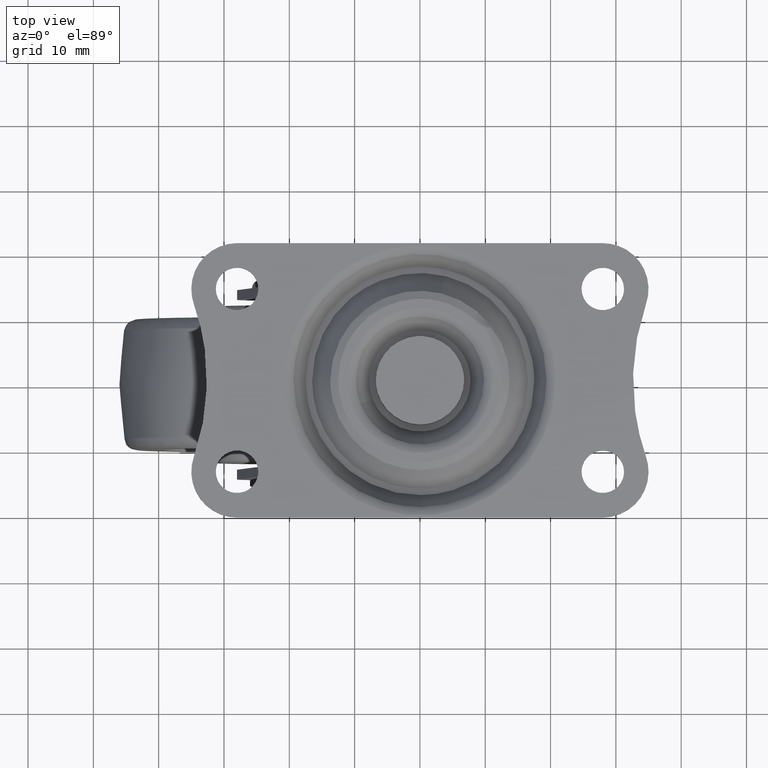
[diagram: clean part render]
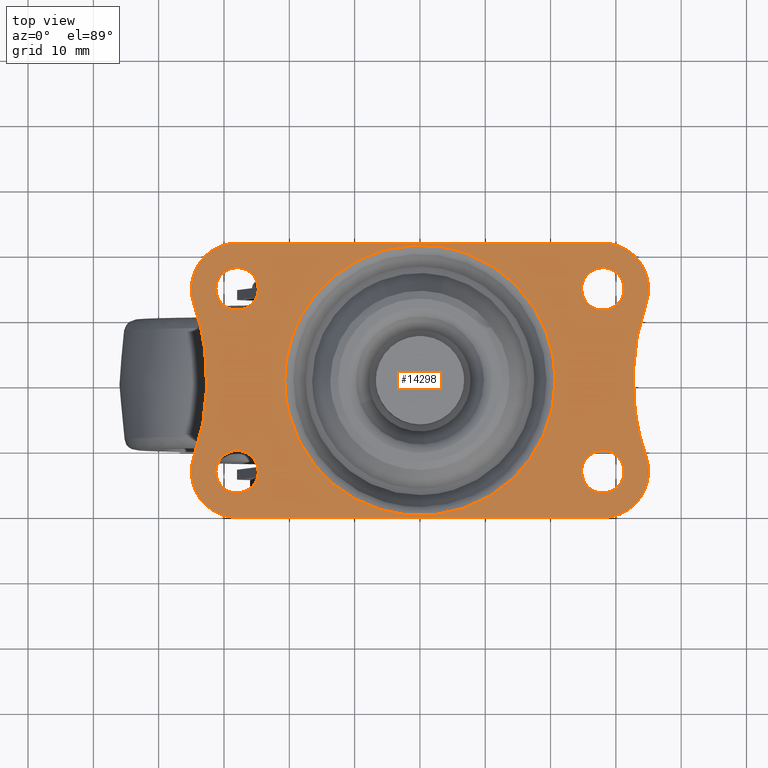
[diagram: same view with one face highlighted and labeled with its STEP entity id]
A machine part, top view. The second image highlights one B-rep face of the part: STEP entity #14298.
In plain terms, the highlighted face is a freeform B-spline surface patch.
Its self-contained STEP definition (entity closure, byte-faithful):
#7924=CARTESIAN_POINT('',(-28.383611239144710,10.772719237933909,1.499999999999946));
#7925=VERTEX_POINT('',#7924);
#7931=CARTESIAN_POINT('',(-24.750000199999999,14.0,1.499999999999946));
#7932=VERTEX_POINT('',#7931);
#7933=CARTESIAN_POINT('',(-28.383611239144710,10.772719237933902,1.499999999999946));
#7934=CARTESIAN_POINT('',(-28.192478377142205,10.750000199999997,1.499999999999946));
#7935=CARTESIAN_POINT('',(-28.0,10.750000200000001,1.499999999999946));
#7936=CARTESIAN_POINT('',(-24.750000200000002,10.750000200000001,1.499999999999946));
#7937=CARTESIAN_POINT('',(-24.750000199999999,14.0,1.499999999999946));
#7945=(BOUNDED_CURVE()B_SPLINE_CURVE(2,(#7933,#7934,#7935,#7936,#7937),.UNSPECIFIED.,.F.,.U.)B_SPLINE_CURVE_WITH_KNOTS((3,2,3),(0.229562473503381,0.250000000000000,0.500000000000000),.UNSPECIFIED.)CURVE()GEOMETRIC_REPRESENTATION_ITEM()RATIONAL_B_SPLINE_CURVE((0.956026754163850,0.976055948319280,1.0,0.707106781186548,1.0))REPRESENTATION_ITEM(''));
#7946=EDGE_CURVE('',#7925,#7932,#7945,.T.);
#7948=CARTESIAN_POINT('',(-27.801592258565499,17.243937895234570,1.499999999999946));
#7949=VERTEX_POINT('',#7948);
#7950=CARTESIAN_POINT('',(-24.750000199999999,14.0,1.499999999999946));
#7951=CARTESIAN_POINT('',(-24.750000199999999,17.057294529007827,1.499999999999947));
#7952=CARTESIAN_POINT('',(-27.801592258565499,17.243937895234570,1.499999999999946));
#7960=(BOUNDED_CURVE()B_SPLINE_CURVE(2,(#7950,#7951,#7952),.UNSPECIFIED.,.F.,.U.)B_SPLINE_CURVE_WITH_KNOTS((3,3),(0.500000000000000,0.739332962225380),.UNSPECIFIED.)CURVE()GEOMETRIC_REPRESENTATION_ITEM()RATIONAL_B_SPLINE_CURVE((1.0,0.719603993302600,0.976072041637651))REPRESENTATION_ITEM(''));
#7961=EDGE_CURVE('',#7932,#7949,#7960,.T.);
#8035=CARTESIAN_POINT('',(-31.249999800000001,14.0,1.499999999999946));
#8036=VERTEX_POINT('',#8035);
#8037=CARTESIAN_POINT('',(-27.801592258565499,17.243937895234566,1.499999999999946));
#8038=CARTESIAN_POINT('',(-27.900703525233780,17.249999800000005,1.499999999999946));
#8039=CARTESIAN_POINT('',(-28.0,17.249999800000001,1.499999999999946));
#8040=CARTESIAN_POINT('',(-31.249999800000008,17.249999800000001,1.499999999999946));
#8041=CARTESIAN_POINT('',(-31.249999800000001,14.0,1.499999999999946));
#8049=(BOUNDED_CURVE()B_SPLINE_CURVE(2,(#8037,#8038,#8039,#8040,#8041),.UNSPECIFIED.,.F.,.U.)B_SPLINE_CURVE_WITH_KNOTS((3,2,3),(0.739332962225381,0.750000000000000,1.0),.UNSPECIFIED.)CURVE()GEOMETRIC_REPRESENTATION_ITEM()RATIONAL_B_SPLINE_CURVE((0.976072041637652,0.987502787883949,1.0,0.707106781186548,1.0))REPRESENTATION_ITEM(''));
#8050=EDGE_CURVE('',#7949,#8036,#8049,.T.);
#8052=CARTESIAN_POINT('',(-31.249999800000001,14.0,1.499999999999946));
#8053=CARTESIAN_POINT('',(-31.249999800000005,11.113432968503888,1.499999999999946));
#8054=CARTESIAN_POINT('',(-28.383611239144710,10.772719237933902,1.499999999999946));
#8062=(BOUNDED_CURVE()B_SPLINE_CURVE(2,(#8052,#8053,#8054),.UNSPECIFIED.,.F.,.U.)B_SPLINE_CURVE_WITH_KNOTS((3,3),(0.0,0.229562473503381),.UNSPECIFIED.)CURVE()GEOMETRIC_REPRESENTATION_ITEM()RATIONAL_B_SPLINE_CURVE((1.0,0.731050832867267,0.956026754163850))REPRESENTATION_ITEM(''));
#8063=EDGE_CURVE('',#8036,#7925,#8062,.T.);
#8110=CARTESIAN_POINT('',(-28.383611239144710,-17.227288762066010,1.499999999999946));
#8111=VERTEX_POINT('',#8110);
#8117=CARTESIAN_POINT('',(-24.750000199999999,-14.000007999999919,1.499999999999946));
#8118=VERTEX_POINT('',#8117);
#8119=CARTESIAN_POINT('',(-28.383611239144702,-17.227288762066006,1.499999999999946));
#8120=CARTESIAN_POINT('',(-28.192478377142212,-17.250007799999921,1.499999999999947));
#8121=CARTESIAN_POINT('',(-28.0,-17.250007799999921,1.499999999999946));
#8122=CARTESIAN_POINT('',(-24.750000200000002,-17.250007799999917,1.499999999999946));
#8123=CARTESIAN_POINT('',(-24.750000199999999,-14.000007999999919,1.499999999999946));
#8131=(BOUNDED_CURVE()B_SPLINE_CURVE(2,(#8119,#8120,#8121,#8122,#8123),.UNSPECIFIED.,.F.,.U.)B_SPLINE_CURVE_WITH_KNOTS((3,2,3),(0.229562473503381,0.250000000000000,0.500000000000000),.UNSPECIFIED.)CURVE()GEOMETRIC_REPRESENTATION_ITEM()RATIONAL_B_SPLINE_CURVE((0.956026754163849,0.976055948319280,1.0,0.707106781186548,1.0))REPRESENTATION_ITEM(''));
#8132=EDGE_CURVE('',#8111,#8118,#8131,.T.);
#8134=CARTESIAN_POINT('',(-27.801592258565499,-10.756070104765350,1.499999999999946));
#8135=VERTEX_POINT('',#8134);
#8136=CARTESIAN_POINT('',(-24.750000199999999,-14.000007999999919,1.499999999999946));
#8137=CARTESIAN_POINT('',(-24.750000199999999,-10.942713470992089,1.499999999999947));
#8138=CARTESIAN_POINT('',(-27.801592258565499,-10.756070104765355,1.499999999999946));
#8146=(BOUNDED_CURVE()B_SPLINE_CURVE(2,(#8136,#8137,#8138),.UNSPECIFIED.,.F.,.U.)B_SPLINE_CURVE_WITH_KNOTS((3,3),(0.500000000000000,0.739332962225380),.UNSPECIFIED.)CURVE()GEOMETRIC_REPRESENTATION_ITEM()RATIONAL_B_SPLINE_CURVE((1.0,0.719603993302600,0.976072041637651))REPRESENTATION_ITEM(''));
#8147=EDGE_CURVE('',#8118,#8135,#8146,.T.);
#8221=CARTESIAN_POINT('',(-31.249999800000001,-14.000007999999919,1.499999999999946));
#8222=VERTEX_POINT('',#8221);
#8223=CARTESIAN_POINT('',(-27.801592258565499,-10.756070104765351,1.499999999999946));
#8224=CARTESIAN_POINT('',(-27.900703525233780,-10.750008199999922,1.499999999999946));
#8225=CARTESIAN_POINT('',(-28.0,-10.750008199999920,1.499999999999946));
#8226=CARTESIAN_POINT('',(-31.249999800000008,-10.750008199999922,1.499999999999946));
#8227=CARTESIAN_POINT('',(-31.249999800000001,-14.000007999999919,1.499999999999946));
#8235=(BOUNDED_CURVE()B_SPLINE_CURVE(2,(#8223,#8224,#8225,#8226,#8227),.UNSPECIFIED.,.F.,.U.)B_SPLINE_CURVE_WITH_KNOTS((3,2,3),(0.739332962225381,0.750000000000000,1.0),.UNSPECIFIED.)CURVE()GEOMETRIC_REPRESENTATION_ITEM()RATIONAL_B_SPLINE_CURVE((0.976072041637652,0.987502787883949,1.0,0.707106781186548,1.0))REPRESENTATION_ITEM(''));
#8236=EDGE_CURVE('',#8135,#8222,#8235,.T.);
#8238=CARTESIAN_POINT('',(-31.249999800000001,-14.000007999999919,1.499999999999946));
#8239=CARTESIAN_POINT('',(-31.249999800000005,-16.886575031496019,1.499999999999946));
#8240=CARTESIAN_POINT('',(-28.383611239144710,-17.227288762066010,1.499999999999946));
#8248=(BOUNDED_CURVE()B_SPLINE_CURVE(2,(#8238,#8239,#8240),.UNSPECIFIED.,.F.,.U.)B_SPLINE_CURVE_WITH_KNOTS((3,3),(0.0,0.229562473503381),.UNSPECIFIED.)CURVE()GEOMETRIC_REPRESENTATION_ITEM()RATIONAL_B_SPLINE_CURVE((1.0,0.731050832867268,0.956026754163849))REPRESENTATION_ITEM(''));
#8249=EDGE_CURVE('',#8222,#8111,#8248,.T.);
#8296=CARTESIAN_POINT('',(27.616388760855290,10.772719237933909,1.499999999999946));
#8297=VERTEX_POINT('',#8296);
#8303=CARTESIAN_POINT('',(31.249999800000001,14.0,1.499999999999946));
#8304=VERTEX_POINT('',#8303);
#8305=CARTESIAN_POINT('',(27.616388760855298,10.772719237933911,1.499999999999946));
#8306=CARTESIAN_POINT('',(27.807521622857788,10.750000200000001,1.499999999999946));
#8307=CARTESIAN_POINT('',(28.0,10.750000200000001,1.499999999999946));
#8308=CARTESIAN_POINT('',(31.249999800000008,10.750000200000001,1.499999999999946));
#8309=CARTESIAN_POINT('',(31.249999800000001,14.0,1.499999999999946));
#8317=(BOUNDED_CURVE()B_SPLINE_CURVE(2,(#8305,#8306,#8307,#8308,#8309),.UNSPECIFIED.,.F.,.U.)B_SPLINE_CURVE_WITH_KNOTS((3,2,3),(0.229562473503381,0.250000000000000,0.500000000000000),.UNSPECIFIED.)CURVE()GEOMETRIC_REPRESENTATION_ITEM()RATIONAL_B_SPLINE_CURVE((0.956026754163849,0.976055948319280,1.0,0.707106781186548,1.0))REPRESENTATION_ITEM(''));
#8318=EDGE_CURVE('',#8297,#8304,#8317,.T.);
#8320=CARTESIAN_POINT('',(28.198407741434501,17.243937895234570,1.499999999999946));
#8321=VERTEX_POINT('',#8320);
#8322=CARTESIAN_POINT('',(31.249999800000001,14.0,1.499999999999946));
#8323=CARTESIAN_POINT('',(31.249999799999998,17.057294529007827,1.499999999999947));
#8324=CARTESIAN_POINT('',(28.198407741434504,17.243937895234570,1.499999999999946));
#8332=(BOUNDED_CURVE()B_SPLINE_CURVE(2,(#8322,#8323,#8324),.UNSPECIFIED.,.F.,.U.)B_SPLINE_CURVE_WITH_KNOTS((3,3),(0.500000000000000,0.739332962225380),.UNSPECIFIED.)CURVE()GEOMETRIC_REPRESENTATION_ITEM()RATIONAL_B_SPLINE_CURVE((1.0,0.719603993302600,0.976072041637651))REPRESENTATION_ITEM(''));
#8333=EDGE_CURVE('',#8304,#8321,#8332,.T.);
#8407=CARTESIAN_POINT('',(24.750000199999999,14.0,1.499999999999946));
#8408=VERTEX_POINT('',#8407);
#8409=CARTESIAN_POINT('',(28.198407741434504,17.243937895234566,1.499999999999946));
#8410=CARTESIAN_POINT('',(28.099296474766231,17.249999800000005,1.499999999999946));
#8411=CARTESIAN_POINT('',(28.0,17.249999800000001,1.499999999999946));
#8412=CARTESIAN_POINT('',(24.750000200000002,17.249999800000001,1.499999999999946));
#8413=CARTESIAN_POINT('',(24.750000199999999,14.0,1.499999999999946));
#8421=(BOUNDED_CURVE()B_SPLINE_CURVE(2,(#8409,#8410,#8411,#8412,#8413),.UNSPECIFIED.,.F.,.U.)B_SPLINE_CURVE_WITH_KNOTS((3,2,3),(0.739332962225381,0.750000000000000,1.0),.UNSPECIFIED.)CURVE()GEOMETRIC_REPRESENTATION_ITEM()RATIONAL_B_SPLINE_CURVE((0.976072041637652,0.987502787883949,1.0,0.707106781186548,1.0))REPRESENTATION_ITEM(''));
#8422=EDGE_CURVE('',#8321,#8408,#8421,.T.);
#8424=CARTESIAN_POINT('',(24.750000199999999,14.0,1.499999999999946));
#8425=CARTESIAN_POINT('',(24.750000199999999,11.113432968503895,1.499999999999946));
#8426=CARTESIAN_POINT('',(27.616388760855298,10.772719237933911,1.499999999999946));
#8434=(BOUNDED_CURVE()B_SPLINE_CURVE(2,(#8424,#8425,#8426),.UNSPECIFIED.,.F.,.U.)B_SPLINE_CURVE_WITH_KNOTS((3,3),(0.0,0.229562473503381),.UNSPECIFIED.)CURVE()GEOMETRIC_REPRESENTATION_ITEM()RATIONAL_B_SPLINE_CURVE((1.0,0.731050832867268,0.956026754163849))REPRESENTATION_ITEM(''));
#8435=EDGE_CURVE('',#8408,#8297,#8434,.T.);
#8482=CARTESIAN_POINT('',(27.616388760855290,-17.227280762066091,1.499999999999946));
#8483=VERTEX_POINT('',#8482);
#8489=CARTESIAN_POINT('',(31.249999800000001,-14.0,1.499999999999946));
#8490=VERTEX_POINT('',#8489);
#8491=CARTESIAN_POINT('',(27.616388760855290,-17.227280762066098,1.499999999999946));
#8492=CARTESIAN_POINT('',(27.807521622857784,-17.249999800000001,1.499999999999946));
#8493=CARTESIAN_POINT('',(28.0,-17.249999800000001,1.499999999999946));
#8494=CARTESIAN_POINT('',(31.249999800000008,-17.249999800000001,1.499999999999946));
#8495=CARTESIAN_POINT('',(31.249999800000001,-14.0,1.499999999999946));
#8503=(BOUNDED_CURVE()B_SPLINE_CURVE(2,(#8491,#8492,#8493,#8494,#8495),.UNSPECIFIED.,.F.,.U.)B_SPLINE_CURVE_WITH_KNOTS((3,2,3),(0.229562473503381,0.250000000000000,0.500000000000000),.UNSPECIFIED.)CURVE()GEOMETRIC_REPRESENTATION_ITEM()RATIONAL_B_SPLINE_CURVE((0.956026754163849,0.976055948319280,1.0,0.707106781186548,1.0))REPRESENTATION_ITEM(''));
#8504=EDGE_CURVE('',#8483,#8490,#8503,.T.);
#8506=CARTESIAN_POINT('',(28.198407741434501,-10.756062104765430,1.499999999999946));
#8507=VERTEX_POINT('',#8506);
#8508=CARTESIAN_POINT('',(31.249999800000001,-14.0,1.499999999999946));
#8509=CARTESIAN_POINT('',(31.249999799999998,-10.942705470992170,1.499999999999947));
#8510=CARTESIAN_POINT('',(28.198407741434504,-10.756062104765430,1.499999999999946));
#8518=(BOUNDED_CURVE()B_SPLINE_CURVE(2,(#8508,#8509,#8510),.UNSPECIFIED.,.F.,.U.)B_SPLINE_CURVE_WITH_KNOTS((3,3),(0.500000000000000,0.739332962225380),.UNSPECIFIED.)CURVE()GEOMETRIC_REPRESENTATION_ITEM()RATIONAL_B_SPLINE_CURVE((1.0,0.719603993302600,0.976072041637651))REPRESENTATION_ITEM(''));
#8519=EDGE_CURVE('',#8490,#8507,#8518,.T.);
#8593=CARTESIAN_POINT('',(24.750000199999999,-14.0,1.499999999999946));
#8594=VERTEX_POINT('',#8593);
#8595=CARTESIAN_POINT('',(28.198407741434501,-10.756062104765428,1.499999999999946));
#8596=CARTESIAN_POINT('',(28.099296474766234,-10.750000200000006,1.499999999999946));
#8597=CARTESIAN_POINT('',(28.0,-10.750000200000001,1.499999999999946));
#8598=CARTESIAN_POINT('',(24.750000200000002,-10.750000200000001,1.499999999999946));
#8599=CARTESIAN_POINT('',(24.750000199999999,-14.0,1.499999999999946));
#8607=(BOUNDED_CURVE()B_SPLINE_CURVE(2,(#8595,#8596,#8597,#8598,#8599),.UNSPECIFIED.,.F.,.U.)B_SPLINE_CURVE_WITH_KNOTS((3,2,3),(0.739332962225381,0.750000000000000,1.0),.UNSPECIFIED.)CURVE()GEOMETRIC_REPRESENTATION_ITEM()RATIONAL_B_SPLINE_CURVE((0.976072041637652,0.987502787883949,1.0,0.707106781186548,1.0))REPRESENTATION_ITEM(''));
#8608=EDGE_CURVE('',#8507,#8594,#8607,.T.);
#8610=CARTESIAN_POINT('',(24.750000199999999,-14.0,1.499999999999946));
#8611=CARTESIAN_POINT('',(24.750000199999999,-16.886567031496103,1.499999999999946));
#8612=CARTESIAN_POINT('',(27.616388760855290,-17.227280762066098,1.499999999999946));
#8620=(BOUNDED_CURVE()B_SPLINE_CURVE(2,(#8610,#8611,#8612),.UNSPECIFIED.,.F.,.U.)B_SPLINE_CURVE_WITH_KNOTS((3,3),(0.0,0.229562473503381),.UNSPECIFIED.)CURVE()GEOMETRIC_REPRESENTATION_ITEM()RATIONAL_B_SPLINE_CURVE((1.0,0.731050832867268,0.956026754163849))REPRESENTATION_ITEM(''));
#8621=EDGE_CURVE('',#8594,#8483,#8620,.T.);
#11781=CARTESIAN_POINT('',(-18.263908632847151,9.743827607962242,1.500000000000000));
#11782=VERTEX_POINT('',#11781);
#11796=CARTESIAN_POINT('',(-20.700544322871998,0.0,1.500000000000000));
#11797=VERTEX_POINT('',#11796);
#11798=CARTESIAN_POINT('',(-20.700544322871998,0.0,1.500000000000000));
#11799=CARTESIAN_POINT('',(-20.700544322871998,5.176578137493552,1.500000000000000));
#11800=CARTESIAN_POINT('',(-18.263908632847148,9.743827607962242,1.500000000000000));
#11808=(BOUNDED_CURVE()B_SPLINE_CURVE(2,(#11798,#11799,#11800),.UNSPECIFIED.,.F.,.U.)B_SPLINE_CURVE_WITH_KNOTS((3,3),(0.0,0.080114533811381),.UNSPECIFIED.)CURVE()GEOMETRIC_REPRESENTATION_ITEM()RATIONAL_B_SPLINE_CURVE((1.0,0.906139985272981,0.872436381133039))REPRESENTATION_ITEM(''));
#11809=EDGE_CURVE('',#11797,#11782,#11808,.T.);
#11811=CARTESIAN_POINT('',(20.700544322871998,0.0,1.500000000000000));
#11812=VERTEX_POINT('',#11811);
#11813=CARTESIAN_POINT('',(20.700544322871998,0.0,1.500000000000000));
#11814=CARTESIAN_POINT('',(20.700544322872002,-20.700544322872002,1.500000000000000));
#11815=CARTESIAN_POINT('',(0.0,-20.700544322871998,1.500000000000000));
#11816=CARTESIAN_POINT('',(-20.700544322872002,-20.700544322872002,1.500000000000000));
#11817=CARTESIAN_POINT('',(-20.700544322871998,0.0,1.500000000000000));
#11825=(BOUNDED_CURVE()B_SPLINE_CURVE(2,(#11813,#11814,#11815,#11816,#11817),.UNSPECIFIED.,.F.,.U.)B_SPLINE_CURVE_WITH_KNOTS((3,2,3),(0.500000000000000,0.750000000000000,1.0),.UNSPECIFIED.)CURVE()GEOMETRIC_REPRESENTATION_ITEM()RATIONAL_B_SPLINE_CURVE((1.0,0.707106781186547,1.0,0.707106781186547,1.0))REPRESENTATION_ITEM(''));
#11826=EDGE_CURVE('',#11812,#11797,#11825,.T.);
#11828=CARTESIAN_POINT('',(7.569829234272550,19.266816559178160,1.500000000000000));
#11829=VERTEX_POINT('',#11828);
#11830=CARTESIAN_POINT('',(7.569829234272550,19.266816559178157,1.500000000000000));
#11831=CARTESIAN_POINT('',(20.700544322872005,14.107828799413893,1.500000000000000));
#11832=CARTESIAN_POINT('',(20.700544322871998,0.0,1.500000000000000));
#11840=(BOUNDED_CURVE()B_SPLINE_CURVE(2,(#11830,#11831,#11832),.UNSPECIFIED.,.F.,.U.)B_SPLINE_CURVE_WITH_KNOTS((3,3),(0.312091868788221,0.500000000000000),.UNSPECIFIED.)CURVE()GEOMETRIC_REPRESENTATION_ITEM()RATIONAL_B_SPLINE_CURVE((0.890644759603550,0.779851930432646,1.0))REPRESENTATION_ITEM(''));
#11841=EDGE_CURVE('',#11829,#11812,#11840,.T.);
#11878=CARTESIAN_POINT('',(-18.263908632847148,9.743827607962242,1.500000000000000));
#11879=CARTESIAN_POINT('',(-12.418480863913379,20.700544322872002,1.500000000000000));
#11880=CARTESIAN_POINT('',(0.0,20.700544322871998,1.500000000000000));
#11881=CARTESIAN_POINT('',(3.920688836044876,20.700544322872005,1.500000000000000));
#11882=CARTESIAN_POINT('',(7.569829234272552,19.266816559178164,1.500000000000000));
#11890=(BOUNDED_CURVE()B_SPLINE_CURVE(2,(#11878,#11879,#11880,#11881,#11882),.UNSPECIFIED.,.F.,.U.)B_SPLINE_CURVE_WITH_KNOTS((3,2,3),(0.080114533811381,0.250000000000000,0.312091868788221),.UNSPECIFIED.)CURVE()GEOMETRIC_REPRESENTATION_ITEM()RATIONAL_B_SPLINE_CURVE((0.872436381133039,0.800966795913566,1.0,0.927254850753902,0.890644759603550))REPRESENTATION_ITEM(''));
#11891=EDGE_CURVE('',#11782,#11829,#11890,.T.);
#13850=CARTESIAN_POINT('',(-28.000006108652400,-20.999999999997350,1.499999999999946));
#13851=VERTEX_POINT('',#13850);
#13857=CARTESIAN_POINT('',(-34.609300374364153,-11.694120049033801,1.499999999999946));
#13858=VERTEX_POINT('',#13857);
#13859=CARTESIAN_POINT('',(-34.609300374364153,-11.694120049033801,1.499999999999946));
#13860=CARTESIAN_POINT('',(-35.799876129448982,-15.106642331600735,1.499999999999947));
#13861=CARTESIAN_POINT('',(-33.707064042312879,-18.053319731614579,1.499999999999946));
#13862=CARTESIAN_POINT('',(-31.614251955176790,-20.999997131628430,1.499999999999947));
#13863=CARTESIAN_POINT('',(-28.000006108652400,-20.999999999997350,1.499999999999946));
#13871=(BOUNDED_CURVE()B_SPLINE_CURVE(2,(#13859,#13860,#13861,#13862,#13863),.UNSPECIFIED.,.F.,.U.)B_SPLINE_CURVE_WITH_KNOTS((3,2,3),(0.0,0.500000000000000,1.0),.UNSPECIFIED.)CURVE()GEOMETRIC_REPRESENTATION_ITEM()RATIONAL_B_SPLINE_CURVE((1.0,0.888551145444471,1.0,0.888551145444471,1.0))REPRESENTATION_ITEM(''));
#13872=EDGE_CURVE('',#13858,#13851,#13871,.T.);
#13912=CARTESIAN_POINT('',(-34.611171447338400,11.699465691522059,1.499999999999946));
#13913=VERTEX_POINT('',#13912);
#13914=CARTESIAN_POINT('',(-34.609300374364118,-11.694120049033810,1.499999999999946));
#13915=CARTESIAN_POINT('',(-30.528361173397975,0.002999299005608,1.499999999999946));
#13916=CARTESIAN_POINT('',(-34.611171447338400,11.699465691522059,1.499999999999946));
#13924=(BOUNDED_CURVE()B_SPLINE_CURVE(2,(#13914,#13915,#13916),.UNSPECIFIED.,.F.,.U.)CURVE()GEOMETRIC_REPRESENTATION_ITEM()QUASI_UNIFORM_CURVE()RATIONAL_B_SPLINE_CURVE((1.0,0.944160055577411,1.0))REPRESENTATION_ITEM(''));
#13925=EDGE_CURVE('',#13858,#13913,#13924,.T.);
#13967=CARTESIAN_POINT('',(-28.0,21.0,1.499999999999946));
#13968=VERTEX_POINT('',#13967);
#13969=CARTESIAN_POINT('',(-28.0,21.0,1.499999999999946));
#13970=CARTESIAN_POINT('',(-31.612455951553407,21.0,1.499999999999946));
#13971=CARTESIAN_POINT('',(-33.705425626745061,18.055629788793230,1.499999999999946));
#13972=CARTESIAN_POINT('',(-35.798395301936722,15.111259577586459,1.499999999999946));
#13973=CARTESIAN_POINT('',(-34.611171447338378,11.699465691522070,1.499999999999946));
#13981=(BOUNDED_CURVE()B_SPLINE_CURVE(2,(#13969,#13970,#13971,#13972,#13973),.UNSPECIFIED.,.F.,.U.)B_SPLINE_CURVE_WITH_KNOTS((3,2,3),(0.0,0.500000000000000,1.0),.UNSPECIFIED.)CURVE()GEOMETRIC_REPRESENTATION_ITEM()RATIONAL_B_SPLINE_CURVE((1.0,0.888643863633401,1.0,0.888643863633401,1.0))REPRESENTATION_ITEM(''));
#13982=EDGE_CURVE('',#13968,#13913,#13981,.T.);
#14025=CARTESIAN_POINT('',(28.000003909537551,20.999999999998899,1.499999999999946));
#14026=VERTEX_POINT('',#14025);
#14032=CARTESIAN_POINT('',(34.612583487432701,11.703537585386620,1.499999999999946));
#14033=VERTEX_POINT('',#14032);
#14034=CARTESIAN_POINT('',(34.612583487432737,11.703537585386609,1.499999999999946));
#14035=CARTESIAN_POINT('',(35.797259518363020,15.114770928565786,1.499999999999946));
#14036=CARTESIAN_POINT('',(33.704176660765107,18.057384455875809,1.499999999999946));
#14037=CARTESIAN_POINT('',(31.611093803167197,20.999997983185828,1.499999999999946));
#14038=CARTESIAN_POINT('',(28.000003909537551,20.999999999998909,1.499999999999946));
#14046=(BOUNDED_CURVE()B_SPLINE_CURVE(2,(#14034,#14035,#14036,#14037,#14038),.UNSPECIFIED.,.F.,.U.)B_SPLINE_CURVE_WITH_KNOTS((3,2,3),(0.0,0.500000000000000,1.0),.UNSPECIFIED.)CURVE()GEOMETRIC_REPRESENTATION_ITEM()RATIONAL_B_SPLINE_CURVE((1.0,0.888714466506395,1.0,0.888714466506395,1.0))REPRESENTATION_ITEM(''));
#14047=EDGE_CURVE('',#14033,#14026,#14046,.T.);
#14087=CARTESIAN_POINT('',(34.609300893695803,-11.694117002700860,1.499999999999946));
#14088=VERTEX_POINT('',#14087);
#14089=CARTESIAN_POINT('',(34.612583487432673,11.703537585386631,1.499999999999946));
#14090=CARTESIAN_POINT('',(30.527560876538168,0.005283172777488,1.499999999999946));
#14091=CARTESIAN_POINT('',(34.609300893695789,-11.694117002700869,1.499999999999946));
#14099=(BOUNDED_CURVE()B_SPLINE_CURVE(2,(#14089,#14090,#14091),.UNSPECIFIED.,.F.,.U.)CURVE()GEOMETRIC_REPRESENTATION_ITEM()QUASI_UNIFORM_CURVE()RATIONAL_B_SPLINE_CURVE((1.0,0.944140053967661,1.0))REPRESENTATION_ITEM(''));
#14100=EDGE_CURVE('',#14033,#14088,#14099,.T.);
#14142=CARTESIAN_POINT('',(28.0,-21.0,1.499999999999946));
#14143=VERTEX_POINT('',#14142);
#14144=CARTESIAN_POINT('',(28.0,-21.0,1.499999999999946));
#14145=CARTESIAN_POINT('',(31.614248896029277,-21.000000195430211,1.499999999999947));
#14146=CARTESIAN_POINT('',(33.707063762179189,-18.053320872965759,1.499999999999946));
#14147=CARTESIAN_POINT('',(35.799878628329090,-15.106641550501298,1.499999999999947));
#14148=CARTESIAN_POINT('',(34.609300893695803,-11.694117002700860,1.499999999999946));
#14156=(BOUNDED_CURVE()B_SPLINE_CURVE(2,(#14144,#14145,#14146,#14147,#14148),.UNSPECIFIED.,.F.,.U.)B_SPLINE_CURVE_WITH_KNOTS((3,2,3),(0.0,0.500000000000000,1.0),.UNSPECIFIED.)CURVE()GEOMETRIC_REPRESENTATION_ITEM()RATIONAL_B_SPLINE_CURVE((1.0,0.888551001029670,1.0,0.888551001029670,1.0))REPRESENTATION_ITEM(''));
#14157=EDGE_CURVE('',#14143,#14088,#14156,.T.);
#14227=CARTESIAN_POINT('',(-28.000006108652400,-20.999999999997350,1.499999999999946));
#14228=CARTESIAN_POINT('',(28.0,-21.0,1.499999999999946));
#14229=QUASI_UNIFORM_CURVE('',1,(#14227,#14228),.UNSPECIFIED.,.F.,.U.);
#14230=EDGE_CURVE('',#13851,#14143,#14229,.T.);
#14243=CARTESIAN_POINT('',(28.000003909537551,20.999999999998899,1.499999999999946));
#14244=CARTESIAN_POINT('',(-28.0,21.0,1.499999999999946));
#14245=QUASI_UNIFORM_CURVE('',1,(#14243,#14244),.UNSPECIFIED.,.F.,.U.);
#14246=EDGE_CURVE('',#14026,#13968,#14245,.T.);
#14253=CARTESIAN_POINT('',(-38.495357944485889,23.097899918595850,1.500000000000000));
#14254=CARTESIAN_POINT('',(38.495419828221898,23.097899918595850,1.500000000000000));
#14255=CARTESIAN_POINT('',(-38.495357944485889,-23.097901045123631,1.500000000000000));
#14256=CARTESIAN_POINT('',(38.495419828221898,-23.097901045123631,1.500000000000000));
#14257=B_SPLINE_SURFACE_WITH_KNOTS('',1,1,((#14253,#14255),(#14254,#14256)),.UNSPECIFIED.,.F.,.F.,.U.,(2,2),(2,2),(0.0,76.990777772707787),(0.0,46.195800963719478),.UNSPECIFIED.);
#14258=ORIENTED_EDGE('',*,*,#14246,.T.);
#14259=ORIENTED_EDGE('',*,*,#13982,.T.);
#14260=ORIENTED_EDGE('',*,*,#13925,.F.);
#14261=ORIENTED_EDGE('',*,*,#13872,.T.);
#14262=ORIENTED_EDGE('',*,*,#14230,.T.);
#14263=ORIENTED_EDGE('',*,*,#14157,.T.);
#14264=ORIENTED_EDGE('',*,*,#14100,.F.);
#14265=ORIENTED_EDGE('',*,*,#14047,.T.);
#14266=EDGE_LOOP('',(#14258,#14259,#14260,#14261,#14262,#14263,#14264,#14265));
#14267=FACE_OUTER_BOUND('',#14266,.T.);
#14268=ORIENTED_EDGE('',*,*,#11826,.T.);
#14269=ORIENTED_EDGE('',*,*,#11809,.T.);
#14270=ORIENTED_EDGE('',*,*,#11891,.T.);
#14271=ORIENTED_EDGE('',*,*,#11841,.T.);
#14272=EDGE_LOOP('',(#14268,#14269,#14270,#14271));
#14273=FACE_BOUND('',#14272,.T.);
#14274=ORIENTED_EDGE('',*,*,#8519,.F.);
#14275=ORIENTED_EDGE('',*,*,#8504,.F.);
#14276=ORIENTED_EDGE('',*,*,#8621,.F.);
#14277=ORIENTED_EDGE('',*,*,#8608,.F.);
#14278=EDGE_LOOP('',(#14274,#14275,#14276,#14277));
#14279=FACE_BOUND('',#14278,.T.);
#14280=ORIENTED_EDGE('',*,*,#8333,.F.);
#14281=ORIENTED_EDGE('',*,*,#8318,.F.);
#14282=ORIENTED_EDGE('',*,*,#8435,.F.);
#14283=ORIENTED_EDGE('',*,*,#8422,.F.);
#14284=EDGE_LOOP('',(#14280,#14281,#14282,#14283));
#14285=FACE_BOUND('',#14284,.T.);
#14286=ORIENTED_EDGE('',*,*,#8147,.F.);
#14287=ORIENTED_EDGE('',*,*,#8132,.F.);
#14288=ORIENTED_EDGE('',*,*,#8249,.F.);
#14289=ORIENTED_EDGE('',*,*,#8236,.F.);
#14290=EDGE_LOOP('',(#14286,#14287,#14288,#14289));
#14291=FACE_BOUND('',#14290,.T.);
#14292=ORIENTED_EDGE('',*,*,#7961,.F.);
#14293=ORIENTED_EDGE('',*,*,#7946,.F.);
#14294=ORIENTED_EDGE('',*,*,#8063,.F.);
#14295=ORIENTED_EDGE('',*,*,#8050,.F.);
#14296=EDGE_LOOP('',(#14292,#14293,#14294,#14295));
#14297=FACE_BOUND('',#14296,.T.);
#14298=ADVANCED_FACE('',(#14267,#14273,#14279,#14285,#14291,#14297),#14257,.F.);